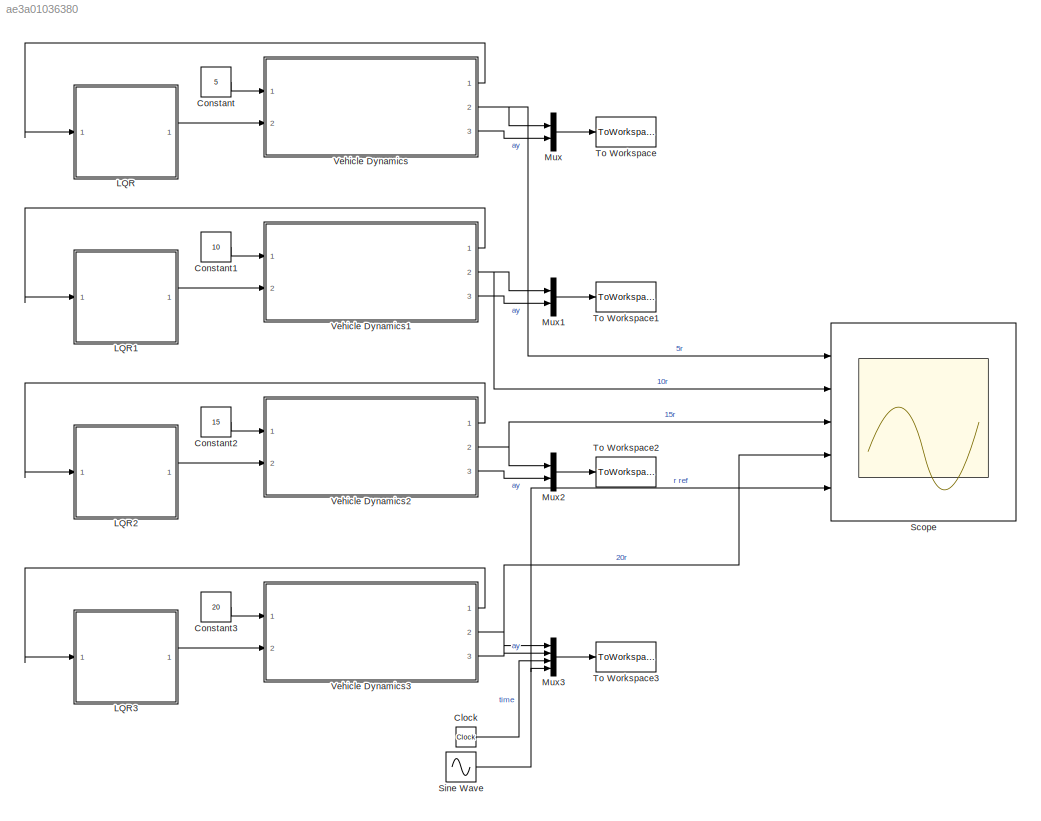
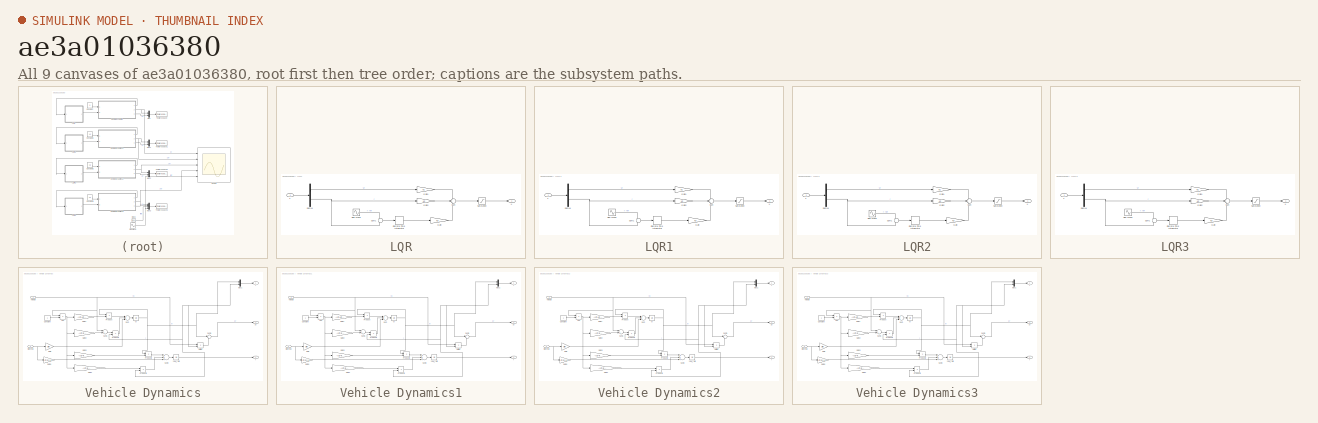
[diagram: thumbnail index - all 9 canvases of the model, root first then tree order]
MODEL slx_ae3a01036380
KIND model
CONFIG AbsTol = auto
CONFIG EnableMultiTasking = off
CONFIG FixedStep = 0.0001
CONFIG MaxStep = auto
CONFIG MinStep = auto
CONFIG RelTol = 1e-3
CONFIG SampleTimeConstraint = Unconstrained
CONFIG Solver = FixedStepAuto
CONFIG SolverName = FixedStepAuto
CONFIG StartTime = 0.0
CONFIG StopTime = 3
BLOCK [Clock] Clock
BLOCK [Constant] Constant
  Value = 5
BLOCK [Constant] Constant1
  Value = 10
BLOCK [Constant] Constant2
  Value = 15
BLOCK [Constant] Constant3
  Value = 20
BLOCK [SubSystem] LQR
  Ports = [1, 1]
  RequestExecContextInheritance = off
BLOCK [Demux] LQR/Demux
  DisplayOption = bar
  Outputs = 2
  Ports = [1, 2]
BLOCK [DiscreteIntegrator] LQR/Discrete-Time Integrator
  ICPrevOutput = DiscIntNeverNeededParam
  ICPrevScaledInput = DiscIntNeverNeededParam
  InitialConditionSetting = Auto
  Ports = [1, 1]
  SampleTime = 0.001
BLOCK [Gain] LQR/Gain
  Gain = K3
  OutDataTypeStr = Inherit: Inherit via internal rule
  ParamDataTypeStr = Inherit: Inherit via internal rule
  SaturateOnIntegerOverflow = off
BLOCK [Gain] LQR/Gain1
  Gain = K1
  OutDataTypeStr = Inherit: Inherit via internal rule
  ParamDataTypeStr = Inherit: Inherit via internal rule
  SaturateOnIntegerOverflow = off
BLOCK [Gain] LQR/Gain2
  Gain = K2
  OutDataTypeStr = Inherit: Inherit via internal rule
  ParamDataTypeStr = Inherit: Inherit via internal rule
  SaturateOnIntegerOverflow = off
BLOCK [Saturate] LQR/Saturation
  InputPortMap = u0
  LowerLimit = -0.45
  Ports = [1, 1]
  UpperLimit = 0.45
BLOCK [Sin] LQR/Sine Wave
  Amplitude = 2
  Frequency = 2
  Ports = [0, 1]
  SampleTime = 0
BLOCK [Sum] LQR/Sum
  IconShape = round
  InputSameDT = off
  Inputs = ---
  OutDataTypeStr = Inherit: Inherit via internal rule
  Ports = [3, 1]
  SaturateOnIntegerOverflow = off
BLOCK [Sum] LQR/Sum1
  IconShape = round
  InputSameDT = off
  Inputs = +-
  OutDataTypeStr = Inherit: Inherit via internal rule
  Ports = [2, 1]
  SaturateOnIntegerOverflow = off
BLOCK [Outport] LQR/u
  IconDisplay = Port number
BLOCK [Inport] LQR/x
  IconDisplay = Port number
BLOCK [SubSystem] LQR1
  Ports = [1, 1]
  RequestExecContextInheritance = off
BLOCK [Demux] LQR1/Demux
  DisplayOption = bar
  Outputs = 2
  Ports = [1, 2]
BLOCK [DiscreteIntegrator] LQR1/Discrete-Time Integrator
  ICPrevOutput = DiscIntNeverNeededParam
  ICPrevScaledInput = DiscIntNeverNeededParam
  InitialConditionSetting = Auto
  Ports = [1, 1]
  SampleTime = 0.001
BLOCK [Gain] LQR1/Gain
  Gain = K3
  OutDataTypeStr = Inherit: Inherit via internal rule
  ParamDataTypeStr = Inherit: Inherit via internal rule
  SaturateOnIntegerOverflow = off
BLOCK [Gain] LQR1/Gain1
  Gain = K1
  OutDataTypeStr = Inherit: Inherit via internal rule
  ParamDataTypeStr = Inherit: Inherit via internal rule
  SaturateOnIntegerOverflow = off
BLOCK [Gain] LQR1/Gain2
  Gain = K2
  OutDataTypeStr = Inherit: Inherit via internal rule
  ParamDataTypeStr = Inherit: Inherit via internal rule
  SaturateOnIntegerOverflow = off
BLOCK [Saturate] LQR1/Saturation
  InputPortMap = u0
  LowerLimit = -0.45
  Ports = [1, 1]
  UpperLimit = 0.45
BLOCK [Sin] LQR1/Sine Wave
  Amplitude = 2
  Frequency = 2
  Ports = [0, 1]
  SampleTime = 0
BLOCK [Sum] LQR1/Sum
  IconShape = round
  InputSameDT = off
  Inputs = ---
  OutDataTypeStr = Inherit: Inherit via internal rule
  Ports = [3, 1]
  SaturateOnIntegerOverflow = off
BLOCK [Sum] LQR1/Sum1
  IconShape = round
  InputSameDT = off
  Inputs = +-
  OutDataTypeStr = Inherit: Inherit via internal rule
  Ports = [2, 1]
  SaturateOnIntegerOverflow = off
BLOCK [Outport] LQR1/u
  IconDisplay = Port number
BLOCK [Inport] LQR1/x
  IconDisplay = Port number
BLOCK [SubSystem] LQR2
  Ports = [1, 1]
  RequestExecContextInheritance = off
BLOCK [Demux] LQR2/Demux
  DisplayOption = bar
  Outputs = 2
  Ports = [1, 2]
BLOCK [DiscreteIntegrator] LQR2/Discrete-Time Integrator
  ICPrevOutput = DiscIntNeverNeededParam
  ICPrevScaledInput = DiscIntNeverNeededParam
  InitialConditionSetting = Auto
  Ports = [1, 1]
  SampleTime = 0.001
BLOCK [Gain] LQR2/Gain
  Gain = K3
  OutDataTypeStr = Inherit: Inherit via internal rule
  ParamDataTypeStr = Inherit: Inherit via internal rule
  SaturateOnIntegerOverflow = off
BLOCK [Gain] LQR2/Gain1
  Gain = K1
  OutDataTypeStr = Inherit: Inherit via internal rule
  ParamDataTypeStr = Inherit: Inherit via internal rule
  SaturateOnIntegerOverflow = off
BLOCK [Gain] LQR2/Gain2
  Gain = K2
  OutDataTypeStr = Inherit: Inherit via internal rule
  ParamDataTypeStr = Inherit: Inherit via internal rule
  SaturateOnIntegerOverflow = off
BLOCK [Saturate] LQR2/Saturation
  InputPortMap = u0
  LowerLimit = -0.45
  Ports = [1, 1]
  UpperLimit = 0.45
BLOCK [Sin] LQR2/Sine Wave
  Amplitude = 2
  Frequency = 2
  Ports = [0, 1]
  SampleTime = 0
BLOCK [Sum] LQR2/Sum
  IconShape = round
  InputSameDT = off
  Inputs = ---
  OutDataTypeStr = Inherit: Inherit via internal rule
  Ports = [3, 1]
  SaturateOnIntegerOverflow = off
BLOCK [Sum] LQR2/Sum1
  IconShape = round
  InputSameDT = off
  Inputs = +-
  OutDataTypeStr = Inherit: Inherit via internal rule
  Ports = [2, 1]
  SaturateOnIntegerOverflow = off
BLOCK [Outport] LQR2/u
  IconDisplay = Port number
BLOCK [Inport] LQR2/x
  IconDisplay = Port number
BLOCK [SubSystem] LQR3
  Ports = [1, 1]
  RequestExecContextInheritance = off
BLOCK [Demux] LQR3/Demux
  DisplayOption = bar
  Outputs = 2
  Ports = [1, 2]
BLOCK [DiscreteIntegrator] LQR3/Discrete-Time Integrator
  ICPrevOutput = DiscIntNeverNeededParam
  ICPrevScaledInput = DiscIntNeverNeededParam
  InitialConditionSetting = Auto
  Ports = [1, 1]
  SampleTime = 0.001
BLOCK [Gain] LQR3/Gain
  Gain = K3
  OutDataTypeStr = Inherit: Inherit via internal rule
  ParamDataTypeStr = Inherit: Inherit via internal rule
  SaturateOnIntegerOverflow = off
BLOCK [Gain] LQR3/Gain1
  Gain = K1
  OutDataTypeStr = Inherit: Inherit via internal rule
  ParamDataTypeStr = Inherit: Inherit via internal rule
  SaturateOnIntegerOverflow = off
BLOCK [Gain] LQR3/Gain2
  Gain = K2
  OutDataTypeStr = Inherit: Inherit via internal rule
  ParamDataTypeStr = Inherit: Inherit via internal rule
  SaturateOnIntegerOverflow = off
BLOCK [Saturate] LQR3/Saturation
  InputPortMap = u0
  LowerLimit = -0.45
  Ports = [1, 1]
  UpperLimit = 0.45
BLOCK [Sin] LQR3/Sine Wave
  Amplitude = 2
  Frequency = 2
  Ports = [0, 1]
  SampleTime = 0
BLOCK [Sum] LQR3/Sum
  IconShape = round
  InputSameDT = off
  Inputs = ---
  OutDataTypeStr = Inherit: Inherit via internal rule
  Ports = [3, 1]
  SaturateOnIntegerOverflow = off
BLOCK [Sum] LQR3/Sum1
  IconShape = round
  InputSameDT = off
  Inputs = +-
  OutDataTypeStr = Inherit: Inherit via internal rule
  Ports = [2, 1]
  SaturateOnIntegerOverflow = off
BLOCK [Outport] LQR3/u
  IconDisplay = Port number
BLOCK [Inport] LQR3/x
  IconDisplay = Port number
BLOCK [Mux] Mux
  DisplayOption = bar
  Inputs = 2
  Ports = [2, 1]
BLOCK [Mux] Mux1
  DisplayOption = bar
  Inputs = 2
  Ports = [2, 1]
BLOCK [Mux] Mux2
  DisplayOption = bar
  Inputs = 2
  Ports = [2, 1]
BLOCK [Mux] Mux3
  DisplayOption = bar
  Ports = [4, 1]
BLOCK [Scope] Scope
  Floating = off
  NumInputPorts = 5
  Ports = [5]
  ScopeSpecificationString = Simulink.scopes.TimeScopeBlockCfg('CurrentConfiguration', extmgr.ConfigurationSet(extmgr.Configuration('Core','General UI',true),extmgr.Configuration('Core','Source UI',true),extmgr.Configuration('Sources','WiredSimulink',true),extmgr.Configuration('Visuals','Time Domain',true,'SerializedDisplays',{struct('MinYLimReal','-2.50037','MaxYLimReal','2.50037','YLabelReal','','MinYLimMag','0.00000','MaxY...<+1606ch>
BLOCK [Sin] Sine Wave
  Amplitude = 2
  Frequency = 2
  Ports = [0, 1]
  SampleTime = 0
BLOCK [ToWorkspace] To Workspace
  FixptAsFi = on
  MaxDataPoints = inf
  Ports = [1]
  SampleTime = -1
  Save2DSignal = 2-D array (concatenate along first dimension)
  VariableName = sine5mslqr
BLOCK [ToWorkspace] To Workspace1
  FixptAsFi = on
  MaxDataPoints = inf
  Ports = [1]
  SampleTime = -1
  Save2DSignal = 2-D array (concatenate along first dimension)
  VariableName = sine10mslqr1
BLOCK [ToWorkspace] To Workspace2
  FixptAsFi = on
  MaxDataPoints = inf
  Ports = [1]
  SampleTime = -1
  Save2DSignal = 2-D array (concatenate along first dimension)
  VariableName = sine15mslqr2
BLOCK [ToWorkspace] To Workspace3
  FixptAsFi = on
  MaxDataPoints = inf
  Ports = [1]
  SampleTime = -1
  Save2DSignal = 2-D array (concatenate along first dimension)
  VariableName = sine20mslqr3
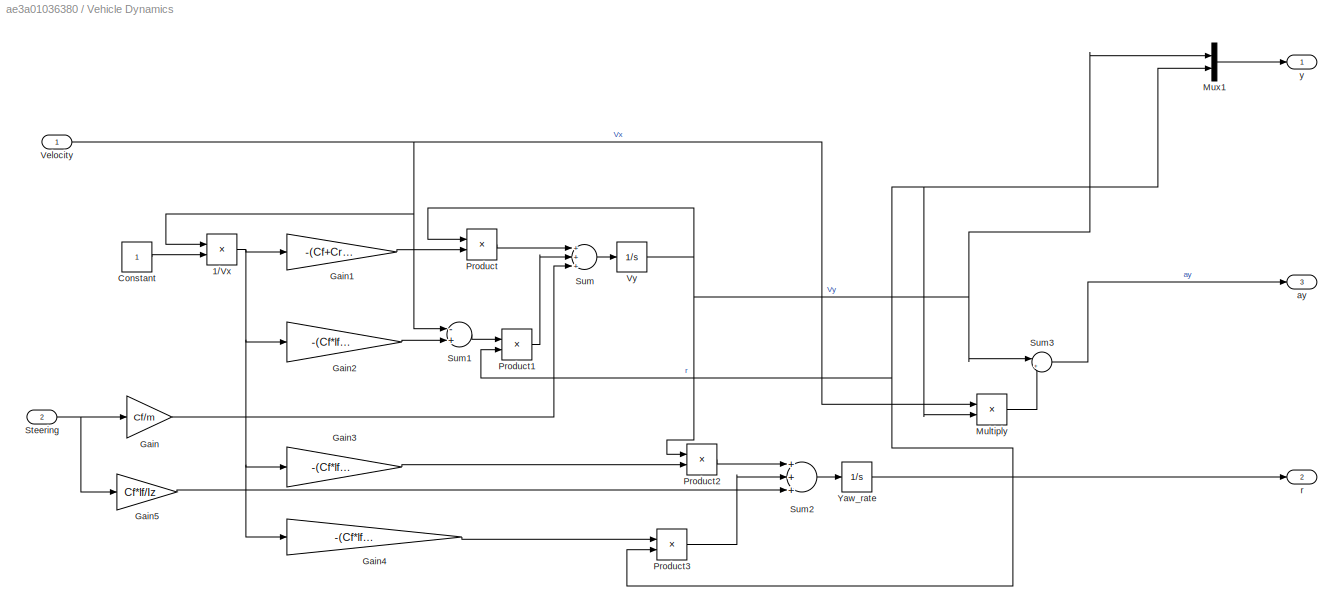
BLOCK [SubSystem] Vehicle Dynamics
  Ports = [2, 3]
  RequestExecContextInheritance = off
BLOCK [Product] Vehicle Dynamics/1//Vx
  InputSameDT = off
  Inputs = /*
  OutDataTypeStr = Inherit: Inherit via internal rule
  Ports = [2, 1]
  RndMeth = Floor
  SaturateOnIntegerOverflow = off
BLOCK [Constant] Vehicle Dynamics/Constant
BLOCK [Gain] Vehicle Dynamics/Gain
  Gain = Cf/m
  OutDataTypeStr = Inherit: Inherit via internal rule
  ParamDataTypeStr = Inherit: Inherit via internal rule
  SaturateOnIntegerOverflow = off
BLOCK [Gain] Vehicle Dynamics/Gain1
  Gain = -(Cf+Cr)/m
  OutDataTypeStr = Inherit: Inherit via internal rule
  ParamDataTypeStr = Inherit: Inherit via internal rule
  SaturateOnIntegerOverflow = off
BLOCK [Gain] Vehicle Dynamics/Gain2
  Gain = -(Cf*lf-Cr*lr)/m
  OutDataTypeStr = Inherit: Inherit via internal rule
  ParamDataTypeStr = Inherit: Inherit via internal rule
  SaturateOnIntegerOverflow = off
BLOCK [Gain] Vehicle Dynamics/Gain3
  Gain = -(Cf*lf-Cr*lr)/Iz
  OutDataTypeStr = Inherit: Inherit via internal rule
  ParamDataTypeStr = Inherit: Inherit via internal rule
  SaturateOnIntegerOverflow = off
BLOCK [Gain] Vehicle Dynamics/Gain4
  Gain = -(Cf*lf^2+Cr*lr^2)/Iz
  OutDataTypeStr = Inherit: Inherit via internal rule
  ParamDataTypeStr = Inherit: Inherit via internal rule
  SaturateOnIntegerOverflow = off
BLOCK [Gain] Vehicle Dynamics/Gain5
  Gain = Cf*lf/Iz
  OutDataTypeStr = Inherit: Inherit via internal rule
  ParamDataTypeStr = Inherit: Inherit via internal rule
  SaturateOnIntegerOverflow = off
BLOCK [Product] Vehicle Dynamics/Multiply
  InputSameDT = off
  OutDataTypeStr = Inherit: Inherit via internal rule
  Ports = [2, 1]
  RndMeth = Floor
  SaturateOnIntegerOverflow = off
BLOCK [Mux] Vehicle Dynamics/Mux1
  DisplayOption = bar
  Inputs = 2
  Ports = [2, 1]
BLOCK [Product] Vehicle Dynamics/Product
  InputSameDT = off
  OutDataTypeStr = Inherit: Inherit via internal rule
  Ports = [2, 1]
  RndMeth = Floor
  SaturateOnIntegerOverflow = off
BLOCK [Product] Vehicle Dynamics/Product1
  InputSameDT = off
  OutDataTypeStr = Inherit: Inherit via internal rule
  Ports = [2, 1]
  RndMeth = Floor
  SaturateOnIntegerOverflow = off
BLOCK [Product] Vehicle Dynamics/Product2
  InputSameDT = off
  OutDataTypeStr = Inherit: Inherit via internal rule
  Ports = [2, 1]
  RndMeth = Floor
  SaturateOnIntegerOverflow = off
BLOCK [Product] Vehicle Dynamics/Product3
  InputSameDT = off
  OutDataTypeStr = Inherit: Inherit via internal rule
  Ports = [2, 1]
  RndMeth = Floor
  SaturateOnIntegerOverflow = off
BLOCK [Inport] Vehicle Dynamics/Steering
  IconDisplay = Port number
  Port = 2
BLOCK [Sum] Vehicle Dynamics/Sum
  InputSameDT = off
  Inputs = +++
  OutDataTypeStr = Inherit: Inherit via internal rule
  Ports = [3, 1]
  SaturateOnIntegerOverflow = off
BLOCK [Sum] Vehicle Dynamics/Sum1
  InputSameDT = off
  Inputs = -+
  OutDataTypeStr = Inherit: Inherit via internal rule
  Ports = [2, 1]
  SaturateOnIntegerOverflow = off
BLOCK [Sum] Vehicle Dynamics/Sum2
  InputSameDT = off
  Inputs = +++
  OutDataTypeStr = Inherit: Inherit via internal rule
  Ports = [3, 1]
  SaturateOnIntegerOverflow = off
BLOCK [Sum] Vehicle Dynamics/Sum3
  IconShape = round
  InputSameDT = off
  Inputs = |++
  OutDataTypeStr = Inherit: Inherit via internal rule
  Ports = [2, 1]
  SaturateOnIntegerOverflow = off
BLOCK [Inport] Vehicle Dynamics/Velocity
  IconDisplay = Port number
BLOCK [Integrator] Vehicle Dynamics/Vy
  Ports = [1, 1]
BLOCK [Integrator] Vehicle Dynamics/Yaw_rate 
  Ports = [1, 1]
BLOCK [Outport] Vehicle Dynamics/ay
  IconDisplay = Port number
  Port = 3
BLOCK [Outport] Vehicle Dynamics/r 
  IconDisplay = Port number
  Port = 2
BLOCK [Outport] Vehicle Dynamics/y 
  IconDisplay = Port number
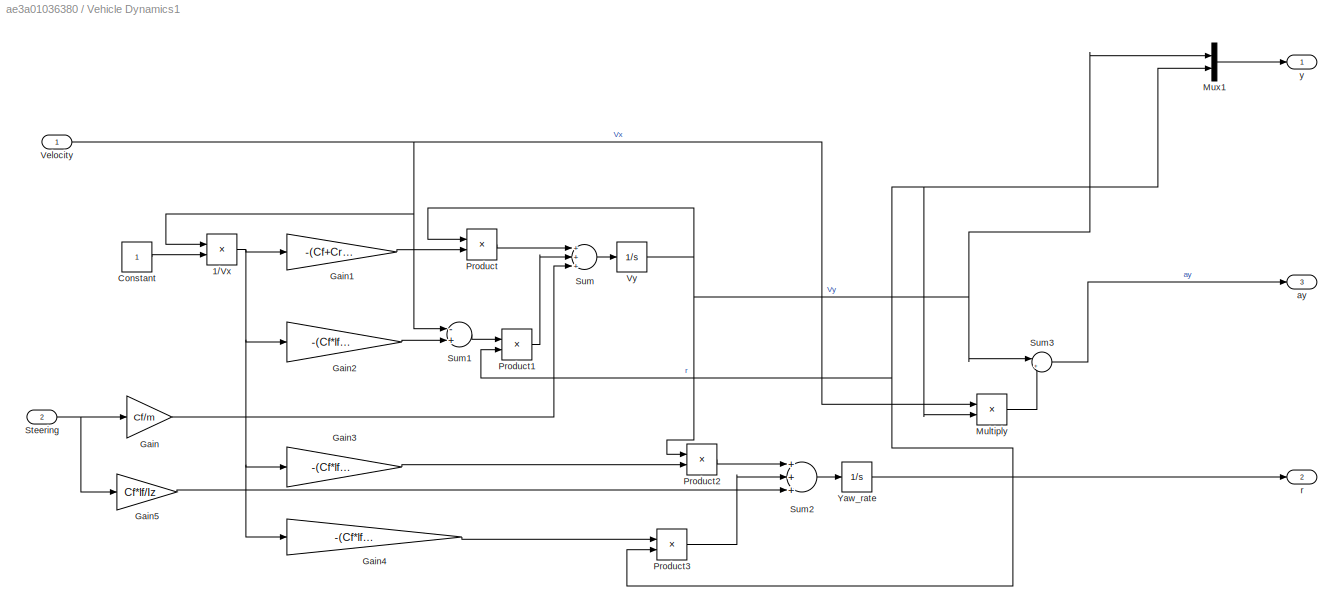
BLOCK [SubSystem] Vehicle Dynamics1
  Ports = [2, 3]
  RequestExecContextInheritance = off
BLOCK [Product] Vehicle Dynamics1/1//Vx
  InputSameDT = off
  Inputs = /*
  OutDataTypeStr = Inherit: Inherit via internal rule
  Ports = [2, 1]
  RndMeth = Floor
  SaturateOnIntegerOverflow = off
BLOCK [Constant] Vehicle Dynamics1/Constant
BLOCK [Gain] Vehicle Dynamics1/Gain
  Gain = Cf/m
  OutDataTypeStr = Inherit: Inherit via internal rule
  ParamDataTypeStr = Inherit: Inherit via internal rule
  SaturateOnIntegerOverflow = off
BLOCK [Gain] Vehicle Dynamics1/Gain1
  Gain = -(Cf+Cr)/m
  OutDataTypeStr = Inherit: Inherit via internal rule
  ParamDataTypeStr = Inherit: Inherit via internal rule
  SaturateOnIntegerOverflow = off
BLOCK [Gain] Vehicle Dynamics1/Gain2
  Gain = -(Cf*lf-Cr*lr)/m
  OutDataTypeStr = Inherit: Inherit via internal rule
  ParamDataTypeStr = Inherit: Inherit via internal rule
  SaturateOnIntegerOverflow = off
BLOCK [Gain] Vehicle Dynamics1/Gain3
  Gain = -(Cf*lf-Cr*lr)/Iz
  OutDataTypeStr = Inherit: Inherit via internal rule
  ParamDataTypeStr = Inherit: Inherit via internal rule
  SaturateOnIntegerOverflow = off
BLOCK [Gain] Vehicle Dynamics1/Gain4
  Gain = -(Cf*lf^2+Cr*lr^2)/Iz
  OutDataTypeStr = Inherit: Inherit via internal rule
  ParamDataTypeStr = Inherit: Inherit via internal rule
  SaturateOnIntegerOverflow = off
BLOCK [Gain] Vehicle Dynamics1/Gain5
  Gain = Cf*lf/Iz
  OutDataTypeStr = Inherit: Inherit via internal rule
  ParamDataTypeStr = Inherit: Inherit via internal rule
  SaturateOnIntegerOverflow = off
BLOCK [Product] Vehicle Dynamics1/Multiply
  InputSameDT = off
  OutDataTypeStr = Inherit: Inherit via internal rule
  Ports = [2, 1]
  RndMeth = Floor
  SaturateOnIntegerOverflow = off
BLOCK [Mux] Vehicle Dynamics1/Mux1
  DisplayOption = bar
  Inputs = 2
  Ports = [2, 1]
BLOCK [Product] Vehicle Dynamics1/Product
  InputSameDT = off
  OutDataTypeStr = Inherit: Inherit via internal rule
  Ports = [2, 1]
  RndMeth = Floor
  SaturateOnIntegerOverflow = off
BLOCK [Product] Vehicle Dynamics1/Product1
  InputSameDT = off
  OutDataTypeStr = Inherit: Inherit via internal rule
  Ports = [2, 1]
  RndMeth = Floor
  SaturateOnIntegerOverflow = off
BLOCK [Product] Vehicle Dynamics1/Product2
  InputSameDT = off
  OutDataTypeStr = Inherit: Inherit via internal rule
  Ports = [2, 1]
  RndMeth = Floor
  SaturateOnIntegerOverflow = off
BLOCK [Product] Vehicle Dynamics1/Product3
  InputSameDT = off
  OutDataTypeStr = Inherit: Inherit via internal rule
  Ports = [2, 1]
  RndMeth = Floor
  SaturateOnIntegerOverflow = off
BLOCK [Inport] Vehicle Dynamics1/Steering
  IconDisplay = Port number
  Port = 2
BLOCK [Sum] Vehicle Dynamics1/Sum
  InputSameDT = off
  Inputs = +++
  OutDataTypeStr = Inherit: Inherit via internal rule
  Ports = [3, 1]
  SaturateOnIntegerOverflow = off
BLOCK [Sum] Vehicle Dynamics1/Sum1
  InputSameDT = off
  Inputs = -+
  OutDataTypeStr = Inherit: Inherit via internal rule
  Ports = [2, 1]
  SaturateOnIntegerOverflow = off
BLOCK [Sum] Vehicle Dynamics1/Sum2
  InputSameDT = off
  Inputs = +++
  OutDataTypeStr = Inherit: Inherit via internal rule
  Ports = [3, 1]
  SaturateOnIntegerOverflow = off
BLOCK [Sum] Vehicle Dynamics1/Sum3
  IconShape = round
  InputSameDT = off
  Inputs = |++
  OutDataTypeStr = Inherit: Inherit via internal rule
  Ports = [2, 1]
  SaturateOnIntegerOverflow = off
BLOCK [Inport] Vehicle Dynamics1/Velocity
  IconDisplay = Port number
BLOCK [Integrator] Vehicle Dynamics1/Vy
  Ports = [1, 1]
BLOCK [Integrator] Vehicle Dynamics1/Yaw_rate 
  Ports = [1, 1]
BLOCK [Outport] Vehicle Dynamics1/ay
  IconDisplay = Port number
  Port = 3
BLOCK [Outport] Vehicle Dynamics1/r 
  IconDisplay = Port number
  Port = 2
BLOCK [Outport] Vehicle Dynamics1/y 
  IconDisplay = Port number
BLOCK [SubSystem] Vehicle Dynamics2
  Ports = [2, 3]
  RequestExecContextInheritance = off
BLOCK [Product] Vehicle Dynamics2/1//Vx
  InputSameDT = off
  Inputs = /*
  OutDataTypeStr = Inherit: Inherit via internal rule
  Ports = [2, 1]
  RndMeth = Floor
  SaturateOnIntegerOverflow = off
BLOCK [Constant] Vehicle Dynamics2/Constant
BLOCK [Gain] Vehicle Dynamics2/Gain
  Gain = Cf/m
  OutDataTypeStr = Inherit: Inherit via internal rule
  ParamDataTypeStr = Inherit: Inherit via internal rule
  SaturateOnIntegerOverflow = off
BLOCK [Gain] Vehicle Dynamics2/Gain1
  Gain = -(Cf+Cr)/m
  OutDataTypeStr = Inherit: Inherit via internal rule
  ParamDataTypeStr = Inherit: Inherit via internal rule
  SaturateOnIntegerOverflow = off
BLOCK [Gain] Vehicle Dynamics2/Gain2
  Gain = -(Cf*lf-Cr*lr)/m
  OutDataTypeStr = Inherit: Inherit via internal rule
  ParamDataTypeStr = Inherit: Inherit via internal rule
  SaturateOnIntegerOverflow = off
BLOCK [Gain] Vehicle Dynamics2/Gain3
  Gain = -(Cf*lf-Cr*lr)/Iz
  OutDataTypeStr = Inherit: Inherit via internal rule
  ParamDataTypeStr = Inherit: Inherit via internal rule
  SaturateOnIntegerOverflow = off
BLOCK [Gain] Vehicle Dynamics2/Gain4
  Gain = -(Cf*lf^2+Cr*lr^2)/Iz
  OutDataTypeStr = Inherit: Inherit via internal rule
  ParamDataTypeStr = Inherit: Inherit via internal rule
  SaturateOnIntegerOverflow = off
BLOCK [Gain] Vehicle Dynamics2/Gain5
  Gain = Cf*lf/Iz
  OutDataTypeStr = Inherit: Inherit via internal rule
  ParamDataTypeStr = Inherit: Inherit via internal rule
  SaturateOnIntegerOverflow = off
BLOCK [Product] Vehicle Dynamics2/Multiply
  InputSameDT = off
  OutDataTypeStr = Inherit: Inherit via internal rule
  Ports = [2, 1]
  RndMeth = Floor
  SaturateOnIntegerOverflow = off
BLOCK [Mux] Vehicle Dynamics2/Mux1
  DisplayOption = bar
  Inputs = 2
  Ports = [2, 1]
BLOCK [Product] Vehicle Dynamics2/Product
  InputSameDT = off
  OutDataTypeStr = Inherit: Inherit via internal rule
  Ports = [2, 1]
  RndMeth = Floor
  SaturateOnIntegerOverflow = off
BLOCK [Product] Vehicle Dynamics2/Product1
  InputSameDT = off
  OutDataTypeStr = Inherit: Inherit via internal rule
  Ports = [2, 1]
  RndMeth = Floor
  SaturateOnIntegerOverflow = off
BLOCK [Product] Vehicle Dynamics2/Product2
  InputSameDT = off
  OutDataTypeStr = Inherit: Inherit via internal rule
  Ports = [2, 1]
  RndMeth = Floor
  SaturateOnIntegerOverflow = off
BLOCK [Product] Vehicle Dynamics2/Product3
  InputSameDT = off
  OutDataTypeStr = Inherit: Inherit via internal rule
  Ports = [2, 1]
  RndMeth = Floor
  SaturateOnIntegerOverflow = off
BLOCK [Inport] Vehicle Dynamics2/Steering
  IconDisplay = Port number
  Port = 2
BLOCK [Sum] Vehicle Dynamics2/Sum
  InputSameDT = off
  Inputs = +++
  OutDataTypeStr = Inherit: Inherit via internal rule
  Ports = [3, 1]
  SaturateOnIntegerOverflow = off
BLOCK [Sum] Vehicle Dynamics2/Sum1
  InputSameDT = off
  Inputs = -+
  OutDataTypeStr = Inherit: Inherit via internal rule
  Ports = [2, 1]
  SaturateOnIntegerOverflow = off
BLOCK [Sum] Vehicle Dynamics2/Sum2
  InputSameDT = off
  Inputs = +++
  OutDataTypeStr = Inherit: Inherit via internal rule
  Ports = [3, 1]
  SaturateOnIntegerOverflow = off
BLOCK [Sum] Vehicle Dynamics2/Sum3
  IconShape = round
  InputSameDT = off
  Inputs = |++
  OutDataTypeStr = Inherit: Inherit via internal rule
  Ports = [2, 1]
  SaturateOnIntegerOverflow = off
BLOCK [Inport] Vehicle Dynamics2/Velocity
  IconDisplay = Port number
BLOCK [Integrator] Vehicle Dynamics2/Vy
  Ports = [1, 1]
BLOCK [Integrator] Vehicle Dynamics2/Yaw_rate 
  Ports = [1, 1]
BLOCK [Outport] Vehicle Dynamics2/ay
  IconDisplay = Port number
  Port = 3
BLOCK [Outport] Vehicle Dynamics2/r 
  IconDisplay = Port number
  Port = 2
BLOCK [Outport] Vehicle Dynamics2/y 
  IconDisplay = Port number
BLOCK [SubSystem] Vehicle Dynamics3
  Ports = [2, 3]
  RequestExecContextInheritance = off
BLOCK [Product] Vehicle Dynamics3/1//Vx
  InputSameDT = off
  Inputs = /*
  OutDataTypeStr = Inherit: Inherit via internal rule
  Ports = [2, 1]
  RndMeth = Floor
  SaturateOnIntegerOverflow = off
BLOCK [Constant] Vehicle Dynamics3/Constant
BLOCK [Gain] Vehicle Dynamics3/Gain
  Gain = Cf/m
  OutDataTypeStr = Inherit: Inherit via internal rule
  ParamDataTypeStr = Inherit: Inherit via internal rule
  SaturateOnIntegerOverflow = off
BLOCK [Gain] Vehicle Dynamics3/Gain1
  Gain = -(Cf+Cr)/m
  OutDataTypeStr = Inherit: Inherit via internal rule
  ParamDataTypeStr = Inherit: Inherit via internal rule
  SaturateOnIntegerOverflow = off
BLOCK [Gain] Vehicle Dynamics3/Gain2
  Gain = -(Cf*lf-Cr*lr)/m
  OutDataTypeStr = Inherit: Inherit via internal rule
  ParamDataTypeStr = Inherit: Inherit via internal rule
  SaturateOnIntegerOverflow = off
BLOCK [Gain] Vehicle Dynamics3/Gain3
  Gain = -(Cf*lf-Cr*lr)/Iz
  OutDataTypeStr = Inherit: Inherit via internal rule
  ParamDataTypeStr = Inherit: Inherit via internal rule
  SaturateOnIntegerOverflow = off
BLOCK [Gain] Vehicle Dynamics3/Gain4
  Gain = -(Cf*lf^2+Cr*lr^2)/Iz
  OutDataTypeStr = Inherit: Inherit via internal rule
  ParamDataTypeStr = Inherit: Inherit via internal rule
  SaturateOnIntegerOverflow = off
BLOCK [Gain] Vehicle Dynamics3/Gain5
  Gain = Cf*lf/Iz
  OutDataTypeStr = Inherit: Inherit via internal rule
  ParamDataTypeStr = Inherit: Inherit via internal rule
  SaturateOnIntegerOverflow = off
BLOCK [Product] Vehicle Dynamics3/Multiply
  InputSameDT = off
  OutDataTypeStr = Inherit: Inherit via internal rule
  Ports = [2, 1]
  RndMeth = Floor
  SaturateOnIntegerOverflow = off
BLOCK [Mux] Vehicle Dynamics3/Mux1
  DisplayOption = bar
  Inputs = 2
  Ports = [2, 1]
BLOCK [Product] Vehicle Dynamics3/Product
  InputSameDT = off
  OutDataTypeStr = Inherit: Inherit via internal rule
  Ports = [2, 1]
  RndMeth = Floor
  SaturateOnIntegerOverflow = off
BLOCK [Product] Vehicle Dynamics3/Product1
  InputSameDT = off
  OutDataTypeStr = Inherit: Inherit via internal rule
  Ports = [2, 1]
  RndMeth = Floor
  SaturateOnIntegerOverflow = off
BLOCK [Product] Vehicle Dynamics3/Product2
  InputSameDT = off
  OutDataTypeStr = Inherit: Inherit via internal rule
  Ports = [2, 1]
  RndMeth = Floor
  SaturateOnIntegerOverflow = off
BLOCK [Product] Vehicle Dynamics3/Product3
  InputSameDT = off
  OutDataTypeStr = Inherit: Inherit via internal rule
  Ports = [2, 1]
  RndMeth = Floor
  SaturateOnIntegerOverflow = off
BLOCK [Inport] Vehicle Dynamics3/Steering
  IconDisplay = Port number
  Port = 2
BLOCK [Sum] Vehicle Dynamics3/Sum
  InputSameDT = off
  Inputs = +++
  OutDataTypeStr = Inherit: Inherit via internal rule
  Ports = [3, 1]
  SaturateOnIntegerOverflow = off
BLOCK [Sum] Vehicle Dynamics3/Sum1
  InputSameDT = off
  Inputs = -+
  OutDataTypeStr = Inherit: Inherit via internal rule
  Ports = [2, 1]
  SaturateOnIntegerOverflow = off
BLOCK [Sum] Vehicle Dynamics3/Sum2
  InputSameDT = off
  Inputs = +++
  OutDataTypeStr = Inherit: Inherit via internal rule
  Ports = [3, 1]
  SaturateOnIntegerOverflow = off
BLOCK [Sum] Vehicle Dynamics3/Sum3
  IconShape = round
  InputSameDT = off
  Inputs = |++
  OutDataTypeStr = Inherit: Inherit via internal rule
  Ports = [2, 1]
  SaturateOnIntegerOverflow = off
BLOCK [Inport] Vehicle Dynamics3/Velocity
  IconDisplay = Port number
BLOCK [Integrator] Vehicle Dynamics3/Vy
  Ports = [1, 1]
BLOCK [Integrator] Vehicle Dynamics3/Yaw_rate 
  Ports = [1, 1]
BLOCK [Outport] Vehicle Dynamics3/ay
  IconDisplay = Port number
  Port = 3
BLOCK [Outport] Vehicle Dynamics3/r 
  IconDisplay = Port number
  Port = 2
BLOCK [Outport] Vehicle Dynamics3/y 
  IconDisplay = Port number
LINE Clock:1 -> Mux3:3
LINE Constant1:1 -> Vehicle Dynamics1:1
LINE Constant2:1 -> Vehicle Dynamics2:1
LINE Constant3:1 -> Vehicle Dynamics3:1
LINE Constant:1 -> Vehicle Dynamics:1
LINE LQR/Demux:1 -> LQR/Gain1:1
NET LQR/Demux:2 -> LQR/Gain2:1, LQR/Sum1:2
LINE LQR/Discrete-Time Integrator:1 -> LQR/Gain:1
LINE LQR/Gain1:1 -> LQR/Sum:1
LINE LQR/Gain2:1 -> LQR/Sum:2
LINE LQR/Gain:1 -> LQR/Sum:3
LINE LQR/Saturation:1 -> LQR/u:1
LINE LQR/Sine Wave:1 -> LQR/Sum1:1
LINE LQR/Sum1:1 -> LQR/Discrete-Time Integrator:1
LINE LQR/Sum:1 -> LQR/Saturation:1
LINE LQR/x:1 -> LQR/Demux:1
LINE LQR1/Demux:1 -> LQR1/Gain1:1
NET LQR1/Demux:2 -> LQR1/Gain2:1, LQR1/Sum1:2
LINE LQR1/Discrete-Time Integrator:1 -> LQR1/Gain:1
LINE LQR1/Gain1:1 -> LQR1/Sum:1
LINE LQR1/Gain2:1 -> LQR1/Sum:2
LINE LQR1/Gain:1 -> LQR1/Sum:3
LINE LQR1/Saturation:1 -> LQR1/u:1
LINE LQR1/Sine Wave:1 -> LQR1/Sum1:1
LINE LQR1/Sum1:1 -> LQR1/Discrete-Time Integrator:1
LINE LQR1/Sum:1 -> LQR1/Saturation:1
LINE LQR1/x:1 -> LQR1/Demux:1
LINE LQR1:1 -> Vehicle Dynamics1:2
LINE LQR2/Demux:1 -> LQR2/Gain1:1
NET LQR2/Demux:2 -> LQR2/Gain2:1, LQR2/Sum1:2
LINE LQR2/Discrete-Time Integrator:1 -> LQR2/Gain:1
LINE LQR2/Gain1:1 -> LQR2/Sum:1
LINE LQR2/Gain2:1 -> LQR2/Sum:2
LINE LQR2/Gain:1 -> LQR2/Sum:3
LINE LQR2/Saturation:1 -> LQR2/u:1
LINE LQR2/Sine Wave:1 -> LQR2/Sum1:1
LINE LQR2/Sum1:1 -> LQR2/Discrete-Time Integrator:1
LINE LQR2/Sum:1 -> LQR2/Saturation:1
LINE LQR2/x:1 -> LQR2/Demux:1
LINE LQR2:1 -> Vehicle Dynamics2:2
LINE LQR3/Demux:1 -> LQR3/Gain1:1
NET LQR3/Demux:2 -> LQR3/Gain2:1, LQR3/Sum1:2
LINE LQR3/Discrete-Time Integrator:1 -> LQR3/Gain:1
LINE LQR3/Gain1:1 -> LQR3/Sum:1
LINE LQR3/Gain2:1 -> LQR3/Sum:2
LINE LQR3/Gain:1 -> LQR3/Sum:3
LINE LQR3/Saturation:1 -> LQR3/u:1
LINE LQR3/Sine Wave:1 -> LQR3/Sum1:1
LINE LQR3/Sum1:1 -> LQR3/Discrete-Time Integrator:1
LINE LQR3/Sum:1 -> LQR3/Saturation:1
LINE LQR3/x:1 -> LQR3/Demux:1
LINE LQR3:1 -> Vehicle Dynamics3:2
LINE LQR:1 -> Vehicle Dynamics:2
LINE Mux1:1 -> To Workspace1:1
LINE Mux2:1 -> To Workspace2:1
LINE Mux3:1 -> To Workspace3:1
LINE Mux:1 -> To Workspace:1
NET Sine Wave:1 -> Mux3:4, Scope:5
NET Vehicle Dynamics/1//Vx:1 -> Vehicle Dynamics/Gain1:1, Vehicle Dynamics/Gain2:1, Vehicle Dynamics/Gain3:1, Vehicle Dynamics/Gain4:1
LINE Vehicle Dynamics/Constant:1 -> Vehicle Dynamics/1//Vx:2
LINE Vehicle Dynamics/Gain1:1 -> Vehicle Dynamics/Product:2
LINE Vehicle Dynamics/Gain2:1 -> Vehicle Dynamics/Sum1:2
LINE Vehicle Dynamics/Gain3:1 -> Vehicle Dynamics/Product2:2
LINE Vehicle Dynamics/Gain4:1 -> Vehicle Dynamics/Product3:1
LINE Vehicle Dynamics/Gain5:1 -> Vehicle Dynamics/Sum2:3
LINE Vehicle Dynamics/Gain:1 -> Vehicle Dynamics/Sum:3
LINE Vehicle Dynamics/Multiply:1 -> Vehicle Dynamics/Sum3:2
LINE Vehicle Dynamics/Mux1:1 -> Vehicle Dynamics/y :1
LINE Vehicle Dynamics/Product1:1 -> Vehicle Dynamics/Sum:2
LINE Vehicle Dynamics/Product2:1 -> Vehicle Dynamics/Sum2:1
LINE Vehicle Dynamics/Product3:1 -> Vehicle Dynamics/Sum2:2
LINE Vehicle Dynamics/Product:1 -> Vehicle Dynamics/Sum:1
NET Vehicle Dynamics/Steering:1 -> Vehicle Dynamics/Gain5:1, Vehicle Dynamics/Gain:1
LINE Vehicle Dynamics/Sum1:1 -> Vehicle Dynamics/Product1:1
LINE Vehicle Dynamics/Sum2:1 -> Vehicle Dynamics/Yaw_rate :1
LINE Vehicle Dynamics/Sum3:1 -> Vehicle Dynamics/ay:1
LINE Vehicle Dynamics/Sum:1 -> Vehicle Dynamics/Vy:1
NET Vehicle Dynamics/Velocity:1 -> Vehicle Dynamics/1//Vx:1, Vehicle Dynamics/Multiply:1, Vehicle Dynamics/Sum1:1
NET Vehicle Dynamics/Vy:1 -> Vehicle Dynamics/Mux1:1, Vehicle Dynamics/Product2:1, Vehicle Dynamics/Product:1, Vehicle Dynamics/Sum3:1
NET Vehicle Dynamics/Yaw_rate :1 -> Vehicle Dynamics/Multiply:2, Vehicle Dynamics/Mux1:2, Vehicle Dynamics/Product1:2, Vehicle Dynamics/Product3:2, Vehicle Dynamics/r :1
NET Vehicle Dynamics1/1//Vx:1 -> Vehicle Dynamics1/Gain1:1, Vehicle Dynamics1/Gain2:1, Vehicle Dynamics1/Gain3:1, Vehicle Dynamics1/Gain4:1
LINE Vehicle Dynamics1/Constant:1 -> Vehicle Dynamics1/1//Vx:2
LINE Vehicle Dynamics1/Gain1:1 -> Vehicle Dynamics1/Product:2
LINE Vehicle Dynamics1/Gain2:1 -> Vehicle Dynamics1/Sum1:2
LINE Vehicle Dynamics1/Gain3:1 -> Vehicle Dynamics1/Product2:2
LINE Vehicle Dynamics1/Gain4:1 -> Vehicle Dynamics1/Product3:1
LINE Vehicle Dynamics1/Gain5:1 -> Vehicle Dynamics1/Sum2:3
LINE Vehicle Dynamics1/Gain:1 -> Vehicle Dynamics1/Sum:3
LINE Vehicle Dynamics1/Multiply:1 -> Vehicle Dynamics1/Sum3:2
LINE Vehicle Dynamics1/Mux1:1 -> Vehicle Dynamics1/y :1
LINE Vehicle Dynamics1/Product1:1 -> Vehicle Dynamics1/Sum:2
LINE Vehicle Dynamics1/Product2:1 -> Vehicle Dynamics1/Sum2:1
LINE Vehicle Dynamics1/Product3:1 -> Vehicle Dynamics1/Sum2:2
LINE Vehicle Dynamics1/Product:1 -> Vehicle Dynamics1/Sum:1
NET Vehicle Dynamics1/Steering:1 -> Vehicle Dynamics1/Gain5:1, Vehicle Dynamics1/Gain:1
LINE Vehicle Dynamics1/Sum1:1 -> Vehicle Dynamics1/Product1:1
LINE Vehicle Dynamics1/Sum2:1 -> Vehicle Dynamics1/Yaw_rate :1
LINE Vehicle Dynamics1/Sum3:1 -> Vehicle Dynamics1/ay:1
LINE Vehicle Dynamics1/Sum:1 -> Vehicle Dynamics1/Vy:1
NET Vehicle Dynamics1/Velocity:1 -> Vehicle Dynamics1/1//Vx:1, Vehicle Dynamics1/Multiply:1, Vehicle Dynamics1/Sum1:1
NET Vehicle Dynamics1/Vy:1 -> Vehicle Dynamics1/Mux1:1, Vehicle Dynamics1/Product2:1, Vehicle Dynamics1/Product:1, Vehicle Dynamics1/Sum3:1
NET Vehicle Dynamics1/Yaw_rate :1 -> Vehicle Dynamics1/Multiply:2, Vehicle Dynamics1/Mux1:2, Vehicle Dynamics1/Product1:2, Vehicle Dynamics1/Product3:2, Vehicle Dynamics1/r :1
LINE Vehicle Dynamics1:1 -> LQR1:1
NET Vehicle Dynamics1:2 -> Mux1:1, Scope:2
LINE Vehicle Dynamics1:3 -> Mux1:2
NET Vehicle Dynamics2/1//Vx:1 -> Vehicle Dynamics2/Gain1:1, Vehicle Dynamics2/Gain2:1, Vehicle Dynamics2/Gain3:1, Vehicle Dynamics2/Gain4:1
LINE Vehicle Dynamics2/Constant:1 -> Vehicle Dynamics2/1//Vx:2
LINE Vehicle Dynamics2/Gain1:1 -> Vehicle Dynamics2/Product:2
LINE Vehicle Dynamics2/Gain2:1 -> Vehicle Dynamics2/Sum1:2
LINE Vehicle Dynamics2/Gain3:1 -> Vehicle Dynamics2/Product2:2
LINE Vehicle Dynamics2/Gain4:1 -> Vehicle Dynamics2/Product3:1
LINE Vehicle Dynamics2/Gain5:1 -> Vehicle Dynamics2/Sum2:3
LINE Vehicle Dynamics2/Gain:1 -> Vehicle Dynamics2/Sum:3
LINE Vehicle Dynamics2/Multiply:1 -> Vehicle Dynamics2/Sum3:2
LINE Vehicle Dynamics2/Mux1:1 -> Vehicle Dynamics2/y :1
LINE Vehicle Dynamics2/Product1:1 -> Vehicle Dynamics2/Sum:2
LINE Vehicle Dynamics2/Product2:1 -> Vehicle Dynamics2/Sum2:1
LINE Vehicle Dynamics2/Product3:1 -> Vehicle Dynamics2/Sum2:2
LINE Vehicle Dynamics2/Product:1 -> Vehicle Dynamics2/Sum:1
NET Vehicle Dynamics2/Steering:1 -> Vehicle Dynamics2/Gain5:1, Vehicle Dynamics2/Gain:1
LINE Vehicle Dynamics2/Sum1:1 -> Vehicle Dynamics2/Product1:1
LINE Vehicle Dynamics2/Sum2:1 -> Vehicle Dynamics2/Yaw_rate :1
LINE Vehicle Dynamics2/Sum3:1 -> Vehicle Dynamics2/ay:1
LINE Vehicle Dynamics2/Sum:1 -> Vehicle Dynamics2/Vy:1
NET Vehicle Dynamics2/Velocity:1 -> Vehicle Dynamics2/1//Vx:1, Vehicle Dynamics2/Multiply:1, Vehicle Dynamics2/Sum1:1
NET Vehicle Dynamics2/Vy:1 -> Vehicle Dynamics2/Mux1:1, Vehicle Dynamics2/Product2:1, Vehicle Dynamics2/Product:1, Vehicle Dynamics2/Sum3:1
NET Vehicle Dynamics2/Yaw_rate :1 -> Vehicle Dynamics2/Multiply:2, Vehicle Dynamics2/Mux1:2, Vehicle Dynamics2/Product1:2, Vehicle Dynamics2/Product3:2, Vehicle Dynamics2/r :1
LINE Vehicle Dynamics2:1 -> LQR2:1
NET Vehicle Dynamics2:2 -> Mux2:1, Scope:3
LINE Vehicle Dynamics2:3 -> Mux2:2
NET Vehicle Dynamics3/1//Vx:1 -> Vehicle Dynamics3/Gain1:1, Vehicle Dynamics3/Gain2:1, Vehicle Dynamics3/Gain3:1, Vehicle Dynamics3/Gain4:1
LINE Vehicle Dynamics3/Constant:1 -> Vehicle Dynamics3/1//Vx:2
LINE Vehicle Dynamics3/Gain1:1 -> Vehicle Dynamics3/Product:2
LINE Vehicle Dynamics3/Gain2:1 -> Vehicle Dynamics3/Sum1:2
LINE Vehicle Dynamics3/Gain3:1 -> Vehicle Dynamics3/Product2:2
LINE Vehicle Dynamics3/Gain4:1 -> Vehicle Dynamics3/Product3:1
LINE Vehicle Dynamics3/Gain5:1 -> Vehicle Dynamics3/Sum2:3
LINE Vehicle Dynamics3/Gain:1 -> Vehicle Dynamics3/Sum:3
LINE Vehicle Dynamics3/Multiply:1 -> Vehicle Dynamics3/Sum3:2
LINE Vehicle Dynamics3/Mux1:1 -> Vehicle Dynamics3/y :1
LINE Vehicle Dynamics3/Product1:1 -> Vehicle Dynamics3/Sum:2
LINE Vehicle Dynamics3/Product2:1 -> Vehicle Dynamics3/Sum2:1
LINE Vehicle Dynamics3/Product3:1 -> Vehicle Dynamics3/Sum2:2
LINE Vehicle Dynamics3/Product:1 -> Vehicle Dynamics3/Sum:1
NET Vehicle Dynamics3/Steering:1 -> Vehicle Dynamics3/Gain5:1, Vehicle Dynamics3/Gain:1
LINE Vehicle Dynamics3/Sum1:1 -> Vehicle Dynamics3/Product1:1
LINE Vehicle Dynamics3/Sum2:1 -> Vehicle Dynamics3/Yaw_rate :1
LINE Vehicle Dynamics3/Sum3:1 -> Vehicle Dynamics3/ay:1
LINE Vehicle Dynamics3/Sum:1 -> Vehicle Dynamics3/Vy:1
NET Vehicle Dynamics3/Velocity:1 -> Vehicle Dynamics3/1//Vx:1, Vehicle Dynamics3/Multiply:1, Vehicle Dynamics3/Sum1:1
NET Vehicle Dynamics3/Vy:1 -> Vehicle Dynamics3/Mux1:1, Vehicle Dynamics3/Product2:1, Vehicle Dynamics3/Product:1, Vehicle Dynamics3/Sum3:1
NET Vehicle Dynamics3/Yaw_rate :1 -> Vehicle Dynamics3/Multiply:2, Vehicle Dynamics3/Mux1:2, Vehicle Dynamics3/Product1:2, Vehicle Dynamics3/Product3:2, Vehicle Dynamics3/r :1
LINE Vehicle Dynamics3:1 -> LQR3:1
NET Vehicle Dynamics3:2 -> Mux3:1, Scope:4
LINE Vehicle Dynamics3:3 -> Mux3:2
LINE Vehicle Dynamics:1 -> LQR:1
NET Vehicle Dynamics:2 -> Mux:1, Scope:1
LINE Vehicle Dynamics:3 -> Mux:2
note: NET lines group one-source signal fan-out (src -> all destinations, sorted); 1:1 wires keep LINE
